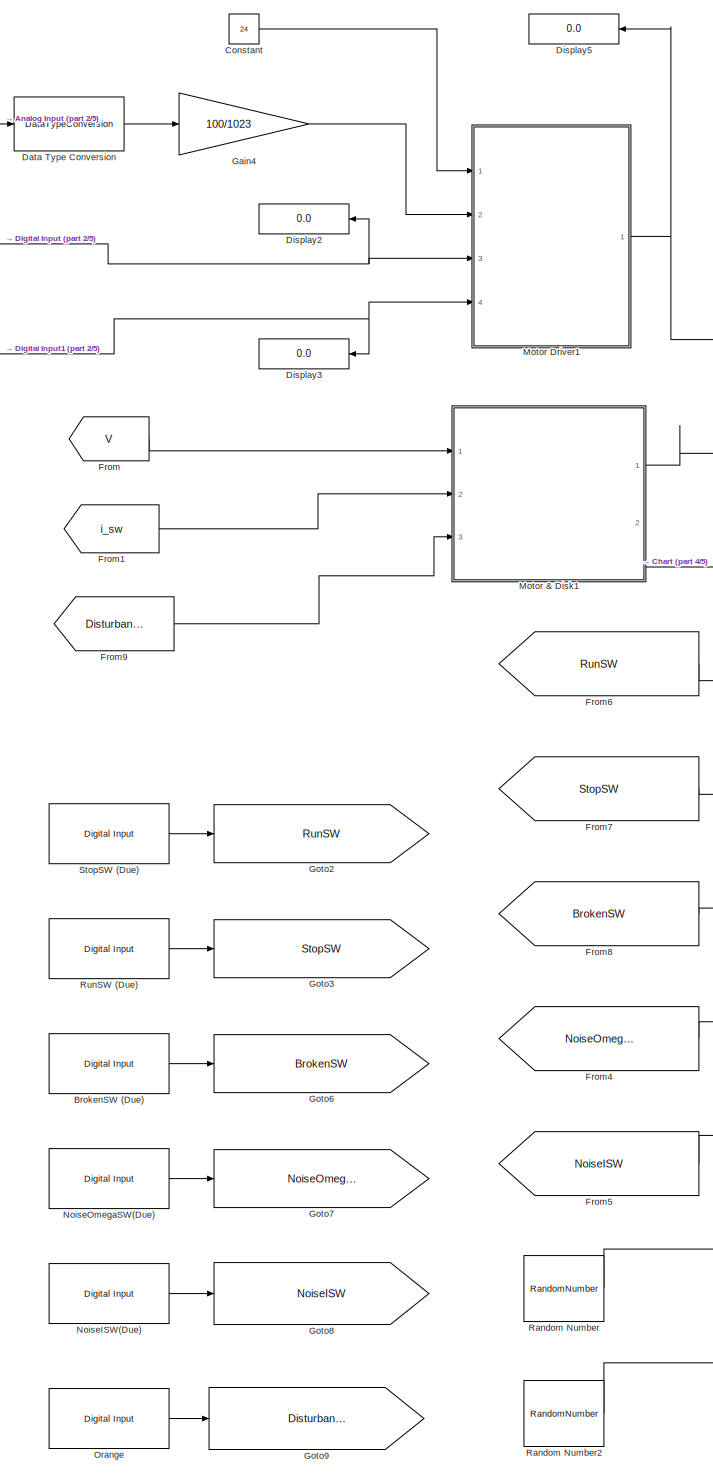
[diagram: root canvas - part 1/5, left side, full height]
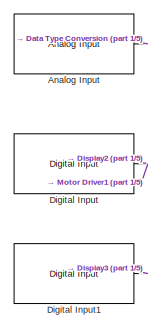
[diagram: root canvas - part 2/5, top left region]
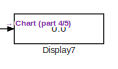
[diagram: root canvas - part 3/5, top center region]
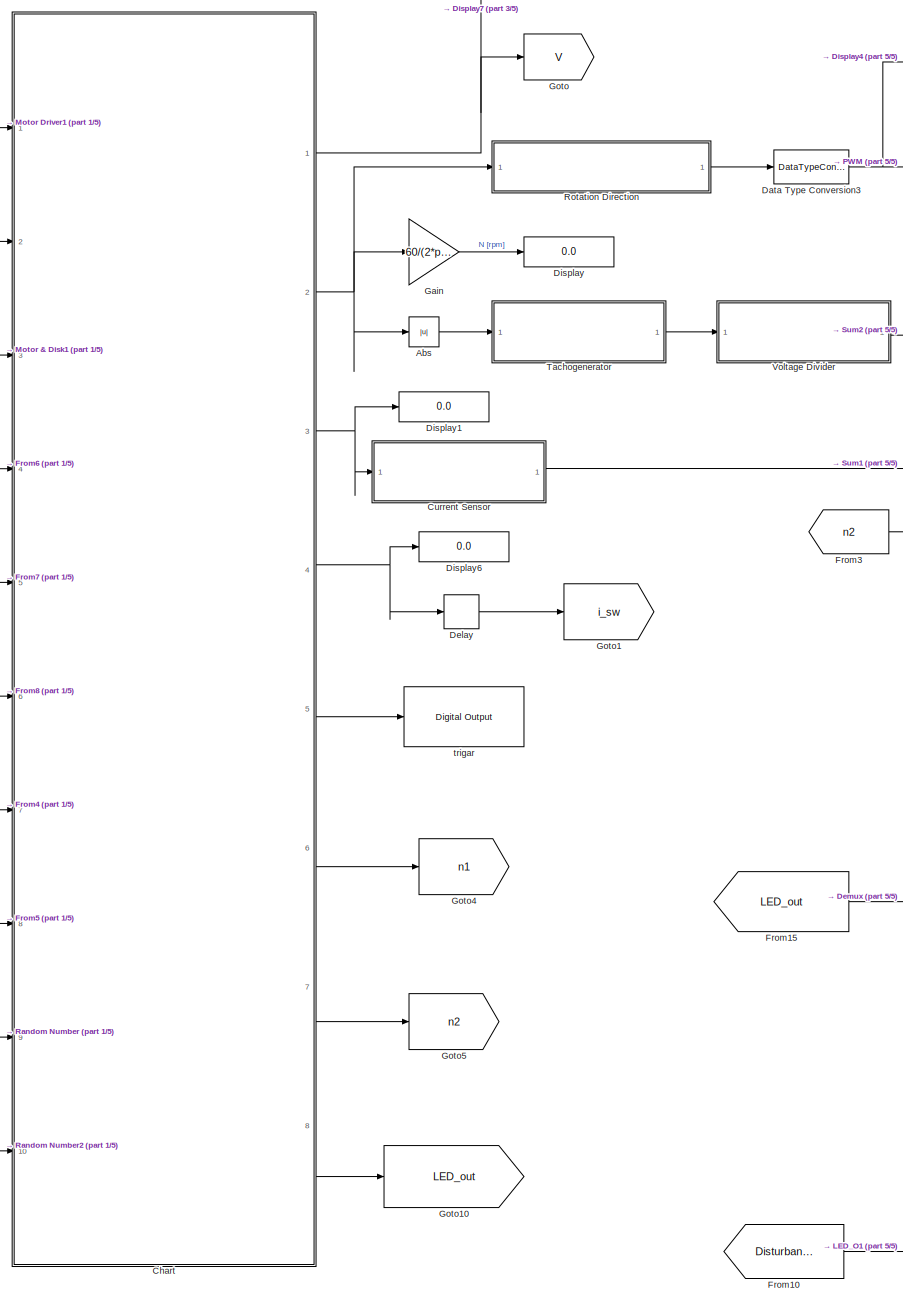
[diagram: root canvas - part 4/5, center side, full height]
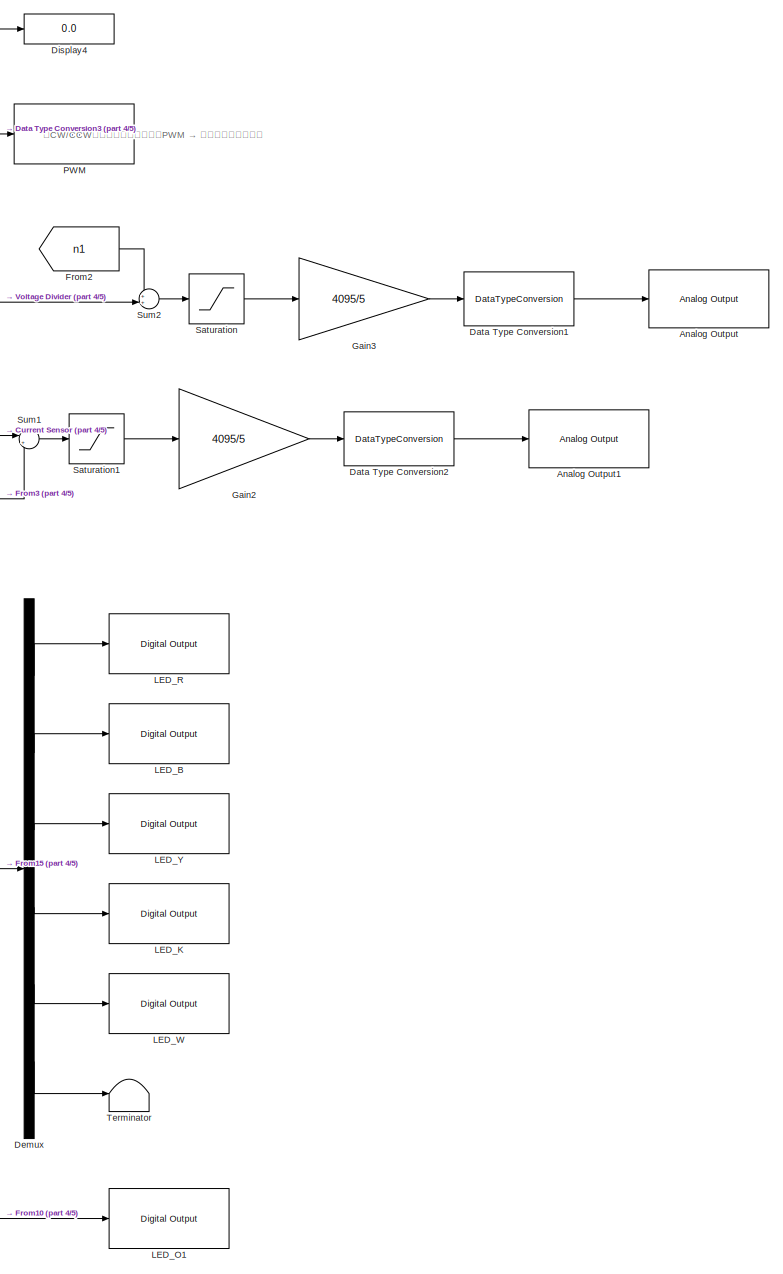
[diagram: root canvas - part 5/5, right side, full height]
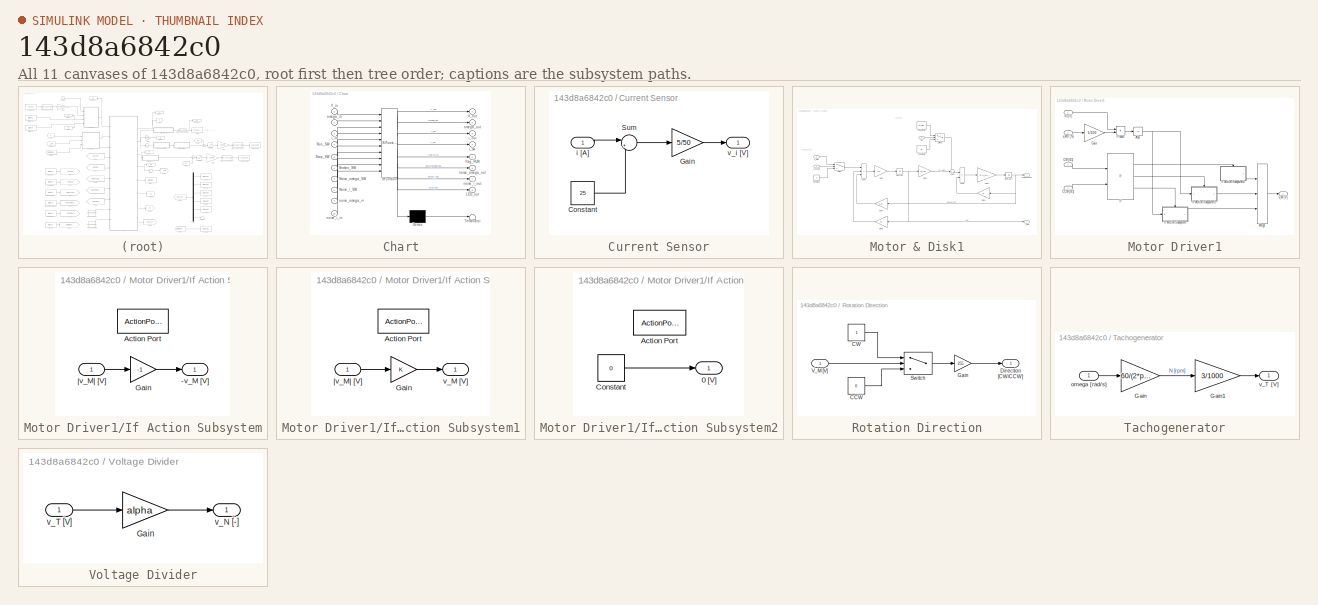
[diagram: thumbnail index - all 11 canvases of the model, root first then tree order]
MODEL slx_143d8a6842c0
KIND model
CONFIG AbsTol = auto
CONFIG EnableMultiTasking = on
CONFIG FixedStep = 1e-2
CONFIG MaxStep = auto
CONFIG MinStep = auto
CONFIG RelTol = 1e-3
CONFIG SampleTimeConstraint = Unconstrained
CONFIG SolverName = ode1
CONFIG StartTime = 0.0
CONFIG StopTime = inf
BLOCK [Abs] Abs
  SaturateOnIntegerOverflow = off
BLOCK [Reference] Analog Input  REF=arduinolib/Analog Input
  Ports = [0, 1]
  SourceBlock = arduinolib/Analog Input
  SourceProductBaseCode = ARDUINO
  SourceType = Arduino Analog Input
BLOCK [Reference] Analog Output  REF=arduinolib/Analog Output
  Ports = [1]
  SourceBlock = arduinolib/Analog Output
  SourceProductBaseCode = ARDUINO
  SourceType = Analog Output
BLOCK [Reference] Analog Output1  REF=arduinolib/Analog Output
  Ports = [1]
  SourceBlock = arduinolib/Analog Output
  SourceProductBaseCode = ARDUINO
  SourceType = Analog Output
BLOCK [Reference] BrokenSW (Due)  REF=arduinolib/Digital Input
  Ports = [0, 1]
  SourceBlock = arduinolib/Digital Input
  SourceProductBaseCode = ARDUINO
  SourceType = Arduino Digital Input
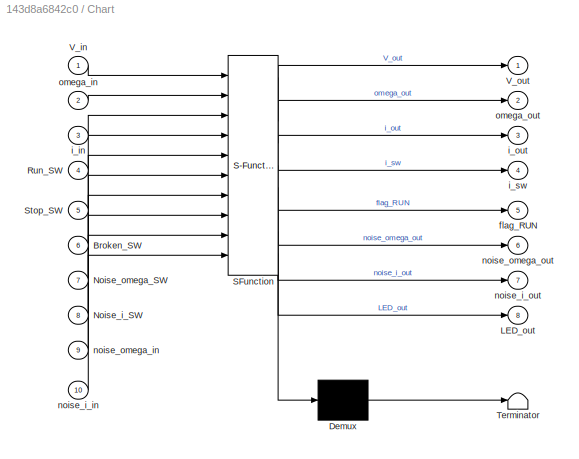
BLOCK [SubSystem] Chart
  ErrorFcn = Stateflow.Translate.translate
  PermitHierarchicalResolution = ExplicitOnly
  Ports = [10, 8]
  RequestExecContextInheritance = off
  SFBlockType = Chart
  TreatAsAtomicUnit = on
BLOCK [Demux] Chart/ Demux 
  Outputs = 1
  Ports = [1, 1]
BLOCK [S-Function] Chart/ SFunction 
  EnableBusSupport = on
  FunctionName = sf_sfun
  PortCounts = [10 9]
  Ports = [10, 9]
  SFcnIsStateOwnerBlock = off
  SFunctionDeploymentMode = off
  Tag = Stateflow S-Function 3
BLOCK [Terminator] Chart/ Terminator 
BLOCK [Inport] Chart/Broken_SW
  Port = 6
BLOCK [Outport] Chart/LED_out
  Port = 8
BLOCK [Inport] Chart/Noise_i_SW
  Port = 8
BLOCK [Inport] Chart/Noise_omega_SW
  Port = 7
BLOCK [Inport] Chart/Run_SW
  Port = 4
BLOCK [Inport] Chart/Stop_SW
  Port = 5
BLOCK [Inport] Chart/V_in
BLOCK [Outport] Chart/V_out
BLOCK [Outport] Chart/flag_RUN
  Port = 5
BLOCK [Inport] Chart/i_in
  Port = 3
BLOCK [Outport] Chart/i_out
  Port = 3
BLOCK [Outport] Chart/i_sw
  Port = 4
BLOCK [Inport] Chart/noise_i_in
  Port = 10
BLOCK [Outport] Chart/noise_i_out
  Port = 7
BLOCK [Inport] Chart/noise_omega_in
  Port = 9
BLOCK [Outport] Chart/noise_omega_out
  Port = 6
BLOCK [Inport] Chart/omega_in
  Port = 2
BLOCK [Outport] Chart/omega_out
  Port = 2
BLOCK [Constant] Constant
  Value = 24
BLOCK [SubSystem] Current Sensor
  Ports = [1, 1]
  RequestExecContextInheritance = off
BLOCK [Constant] Current Sensor/Constant
  Value = 25
BLOCK [Gain] Current Sensor/Gain
  Gain = 5/50
BLOCK [Sum] Current Sensor/Sum
  Inputs = |++
  Ports = [2, 1]
BLOCK [Inport] Current Sensor/i [A]
BLOCK [Outport] Current Sensor/v_i [V]
BLOCK [DataTypeConversion] Data Type Conversion
  OutDataTypeStr = double
  RndMeth = Floor
  SaturateOnIntegerOverflow = off
BLOCK [DataTypeConversion] Data Type Conversion1
  OutDataTypeStr = uint16
  RndMeth = Floor
  SaturateOnIntegerOverflow = off
BLOCK [DataTypeConversion] Data Type Conversion2
  OutDataTypeStr = uint16
  RndMeth = Floor
  SaturateOnIntegerOverflow = off
BLOCK [DataTypeConversion] Data Type Conversion3
  OutDataTypeStr = uint8
  RndMeth = Floor
  SaturateOnIntegerOverflow = off
BLOCK [Delay] Delay
  DelayLength = 1
  InitialCondition = 0
  InputPortMap = u0
  Ports = [1, 1]
BLOCK [Demux] Demux
  Outputs = 6
  Ports = [1, 6]
BLOCK [Reference] Digital Input  REF=arduinolib/Digital Input
  Ports = [0, 1]
  SourceBlock = arduinolib/Digital Input
  SourceProductBaseCode = ARDUINO
  SourceType = Arduino Digital Input
BLOCK [Reference] Digital Input1  REF=arduinolib/Digital Input
  Ports = [0, 1]
  SourceBlock = arduinolib/Digital Input
  SourceProductBaseCode = ARDUINO
  SourceType = Arduino Digital Input
BLOCK [Display] Display
  Decimation = 1
  Ports = [1]
BLOCK [Display] Display1
  Decimation = 1
  Ports = [1]
BLOCK [Display] Display2
  Decimation = 1
  Ports = [1]
BLOCK [Display] Display3
  Decimation = 1
  Ports = [1]
BLOCK [Display] Display4
  Decimation = 1
  Ports = [1]
BLOCK [Display] Display5
  Decimation = 1
  Ports = [1]
BLOCK [Display] Display6
  Decimation = 1
  Ports = [1]
BLOCK [Display] Display7
  Decimation = 1
  Ports = [1]
BLOCK [From] From
  GotoTag = V
BLOCK [From] From1
  GotoTag = i_sw
BLOCK [From] From10
  GotoTag = Disturbance
BLOCK [From] From15
  GotoTag = LED_out
BLOCK [From] From2
  GotoTag = n1
BLOCK [From] From3
  GotoTag = n2
BLOCK [From] From4
  GotoTag = NoiseOmegaSW
BLOCK [From] From5
  GotoTag = NoiseISW
BLOCK [From] From6
  GotoTag = RunSW
BLOCK [From] From7
  GotoTag = StopSW
BLOCK [From] From8
  GotoTag = BrokenSW
BLOCK [From] From9
  GotoTag = Disturbance
BLOCK [Gain] Gain
  Gain = 60/(2*pi)
BLOCK [Gain] Gain2
  Gain = 4095/5
BLOCK [Gain] Gain3
  Gain = 4095/5
  NameLocation = top
BLOCK [Gain] Gain4
  Gain = 100/1023
BLOCK [Goto] Goto
  GotoTag = V
BLOCK [Goto] Goto1
  GotoTag = i_sw
BLOCK [Goto] Goto10
  GotoTag = LED_out
BLOCK [Goto] Goto2
  GotoTag = RunSW
BLOCK [Goto] Goto3
  GotoTag = StopSW
BLOCK [Goto] Goto4
  GotoTag = n1
BLOCK [Goto] Goto5
  GotoTag = n2
BLOCK [Goto] Goto6
  GotoTag = BrokenSW
BLOCK [Goto] Goto7
  GotoTag = NoiseOmegaSW
BLOCK [Goto] Goto8
  GotoTag = NoiseISW
BLOCK [Goto] Goto9
  GotoTag = Disturbance
BLOCK [Reference] LED_B  REF=arduinolib/Digital Output
  Ports = [1]
  SourceBlock = arduinolib/Digital Output
  SourceProductBaseCode = ARDUINO
  SourceType = Arduino Digital Output
BLOCK [Reference] LED_K  REF=arduinolib/Digital Output
  Ports = [1]
  SourceBlock = arduinolib/Digital Output
  SourceProductBaseCode = ARDUINO
  SourceType = Arduino Digital Output
BLOCK [Reference] LED_O1  REF=arduinolib/Digital Output
  Ports = [1]
  SourceBlock = arduinolib/Digital Output
  SourceProductBaseCode = ARDUINO
  SourceType = Arduino Digital Output
BLOCK [Reference] LED_R  REF=arduinolib/Digital Output
  Ports = [1]
  SourceBlock = arduinolib/Digital Output
  SourceProductBaseCode = ARDUINO
  SourceType = Arduino Digital Output
BLOCK [Reference] LED_W  REF=arduinolib/Digital Output
  Ports = [1]
  SourceBlock = arduinolib/Digital Output
  SourceProductBaseCode = ARDUINO
  SourceType = Arduino Digital Output
BLOCK [Reference] LED_Y  REF=arduinolib/Digital Output
  Ports = [1]
  SourceBlock = arduinolib/Digital Output
  SourceProductBaseCode = ARDUINO
  SourceType = Arduino Digital Output
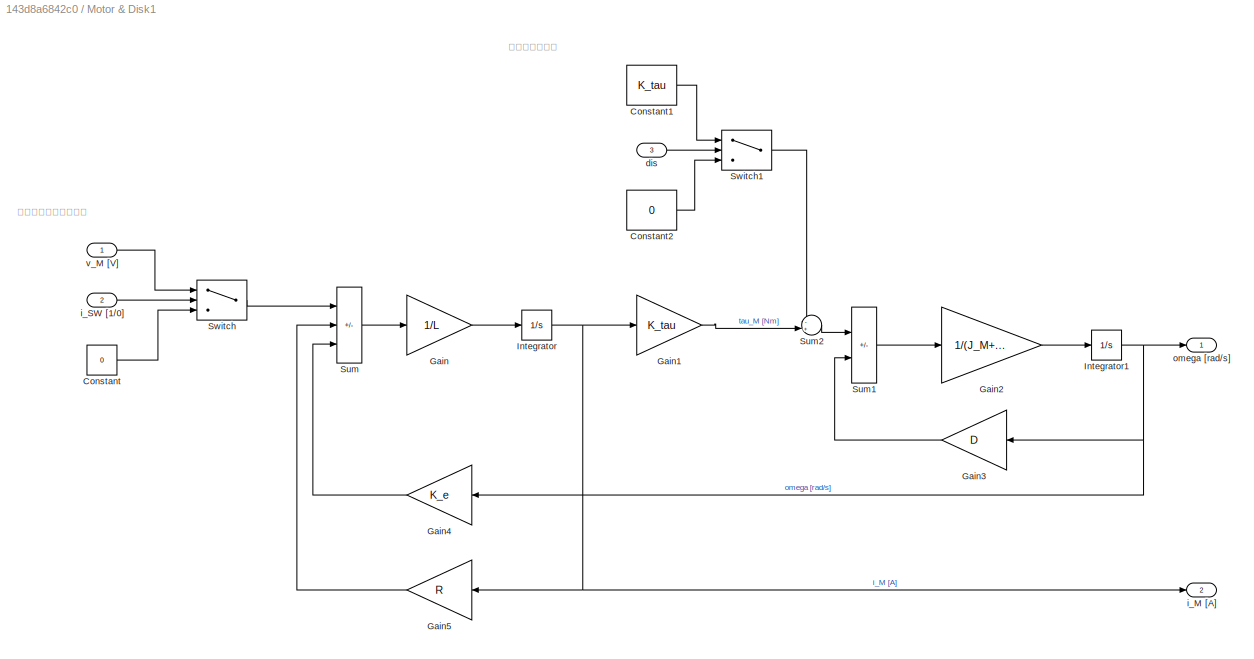
BLOCK [SubSystem] Motor & Disk1
  Ports = [3, 2]
  RequestExecContextInheritance = off
BLOCK [Constant] Motor & Disk1/Constant
  Value = 0
BLOCK [Constant] Motor & Disk1/Constant1
  Value = K_tau
BLOCK [Constant] Motor & Disk1/Constant2
  Value = 0
BLOCK [Gain] Motor & Disk1/Gain
  Gain = 1/L
BLOCK [Gain] Motor & Disk1/Gain1
  Gain = K_tau
BLOCK [Gain] Motor & Disk1/Gain2
  Gain = 1/(J_M+J_I)
BLOCK [Gain] Motor & Disk1/Gain3
  Gain = D
BLOCK [Gain] Motor & Disk1/Gain4
  Gain = K_e
BLOCK [Gain] Motor & Disk1/Gain5
  Gain = R
BLOCK [Integrator] Motor & Disk1/Integrator
  Ports = [1, 1]
BLOCK [Integrator] Motor & Disk1/Integrator1
  Ports = [1, 1]
BLOCK [Sum] Motor & Disk1/Sum
  IconShape = rectangular
  Inputs = +--
  Ports = [3, 1]
BLOCK [Sum] Motor & Disk1/Sum1
  IconShape = rectangular
  Inputs = +-
  Ports = [2, 1]
BLOCK [Sum] Motor & Disk1/Sum2
  Inputs = -+|
  Ports = [2, 1]
BLOCK [Switch] Motor & Disk1/Switch
  Criteria = u2 > Threshold
  InputSameDT = off
  SaturateOnIntegerOverflow = off
  Threshold = 0.5
BLOCK [Switch] Motor & Disk1/Switch1
  Criteria = u2 > Threshold
  InputSameDT = off
  SaturateOnIntegerOverflow = off
  Threshold = 0.5
BLOCK [Inport] Motor & Disk1/dis
  Port = 3
BLOCK [Outport] Motor & Disk1/i_M [A]
  Port = 2
BLOCK [Inport] Motor & Disk1/i_SW [1//0]
  Port = 2
BLOCK [Outport] Motor & Disk1/omega [rad//s]
BLOCK [Inport] Motor & Disk1/v_M [V]
BLOCK [SubSystem] Motor Driver1
  Ports = [4, 1]
  RequestExecContextInheritance = off
BLOCK [Abs] Motor Driver1/Abs
  SaturateOnIntegerOverflow = off
BLOCK [Inport] Motor Driver1/CCW [0//1]
  Port = 4
BLOCK [Inport] Motor Driver1/CW [0//1]
  Port = 3
BLOCK [Gain] Motor Driver1/Gain
  Gain = 1/100
BLOCK [If] Motor Driver1/If
  ElseIfExpressions = u1 == 1
  IfExpression = u1 == u2
  NumInputs = 2
  Ports = [2, 3]
BLOCK [SubSystem] Motor Driver1/If Action Subsystem
  Ports = [1, 1, 0, 0, 0, 0, 0, 1]
  RequestExecContextInheritance = off
  TreatAsAtomicUnit = on
BLOCK [Outport] Motor Driver1/If Action Subsystem/-v_M [V]
BLOCK [ActionPort] Motor Driver1/If Action Subsystem/Action Port
  ActionPortLabel = else
BLOCK [Gain] Motor Driver1/If Action Subsystem/Gain
  Gain = -1
BLOCK [Inport] Motor Driver1/If Action Subsystem/|v_M| [V]
BLOCK [SubSystem] Motor Driver1/If Action Subsystem1
  Ports = [1, 1, 0, 0, 0, 0, 0, 1]
  RequestExecContextInheritance = off
  TreatAsAtomicUnit = on
BLOCK [ActionPort] Motor Driver1/If Action Subsystem1/Action Port
  ActionPortLabel = elseif(u1 == 1)
BLOCK [Gain] Motor Driver1/If Action Subsystem1/Gain
BLOCK [Outport] Motor Driver1/If Action Subsystem1/v_M [V]
BLOCK [Inport] Motor Driver1/If Action Subsystem1/|v_M| [V]
BLOCK [SubSystem] Motor Driver1/If Action Subsystem2
  Ports = [0, 1, 0, 0, 0, 0, 0, 1]
  RequestExecContextInheritance = off
  TreatAsAtomicUnit = on
BLOCK [Outport] Motor Driver1/If Action Subsystem2/0 [V]
BLOCK [ActionPort] Motor Driver1/If Action Subsystem2/Action Port
  ActionPortLabel = if(u1 == u2)
BLOCK [Constant] Motor Driver1/If Action Subsystem2/Constant
  Value = 0
BLOCK [Merge] Motor Driver1/Merge
  InitialOutput = [0]
  Inputs = 3
  Ports = [3, 1]
BLOCK [Product] Motor Driver1/Product
  Ports = [2, 1]
BLOCK [Inport] Motor Driver1/Vs [V]
BLOCK [Inport] Motor Driver1/u_MD [%]
  Port = 2
BLOCK [Outport] Motor Driver1/v_M [V]
BLOCK [Reference] NoiseISW(Due)  REF=arduinolib/Digital Input
  Ports = [0, 1]
  SourceBlock = arduinolib/Digital Input
  SourceProductBaseCode = ARDUINO
  SourceType = Arduino Digital Input
BLOCK [Reference] NoiseOmegaSW(Due)  REF=arduinolib/Digital Input
  Ports = [0, 1]
  SourceBlock = arduinolib/Digital Input
  SourceProductBaseCode = ARDUINO
  SourceType = Arduino Digital Input
BLOCK [Reference] Orange  REF=arduinolib/Digital Input
  Ports = [0, 1]
  SourceBlock = arduinolib/Digital Input
  SourceProductBaseCode = ARDUINO
  SourceType = Arduino Digital Input
BLOCK [Reference] PWM  REF=arduinolib/PWM
  Ports = [1]
  SourceBlock = arduinolib/PWM
  SourceProductBaseCode = ARDUINO
  SourceType = Arduino PWM
BLOCK [RandomNumber] Random Number
  SampleTime = 0
  Variance = 1.0^2
BLOCK [RandomNumber] Random Number2
  SampleTime = 0
  Variance = 1.0^2
BLOCK [SubSystem] Rotation Direction
  Ports = [1, 1]
  RequestExecContextInheritance = off
BLOCK [Constant] Rotation Direction/CCW
  Value = 0
BLOCK [Constant] Rotation Direction/CW
BLOCK [Outport] Rotation Direction/Direction [CW//CCW]
BLOCK [Gain] Rotation Direction/Gain
  Gain = 255
BLOCK [Switch] Rotation Direction/Switch
  Criteria = u2 > Threshold
  InputSameDT = off
  SaturateOnIntegerOverflow = off
BLOCK [Inport] Rotation Direction/V_M [V]
BLOCK [Reference] RunSW (Due)  REF=arduinolib/Digital Input
  Ports = [0, 1]
  SourceBlock = arduinolib/Digital Input
  SourceProductBaseCode = ARDUINO
  SourceType = Arduino Digital Input
BLOCK [Saturate] Saturation
  LowerLimit = 0
  UpperLimit = 5
BLOCK [Saturate] Saturation1
  LowerLimit = 0
  UpperLimit = 5
BLOCK [Reference] StopSW (Due)  REF=arduinolib/Digital Input
  Ports = [0, 1]
  SourceBlock = arduinolib/Digital Input
  SourceProductBaseCode = ARDUINO
  SourceType = Arduino Digital Input
BLOCK [Sum] Sum1
  Inputs = |++
  Ports = [2, 1]
BLOCK [Sum] Sum2
  Inputs = ++|
  Ports = [2, 1]
BLOCK [SubSystem] Tachogenerator
  Ports = [1, 1]
  RequestExecContextInheritance = off
BLOCK [Gain] Tachogenerator/Gain
  Gain = 60/(2*pi)
BLOCK [Gain] Tachogenerator/Gain1
  Gain = 3/1000
BLOCK [Inport] Tachogenerator/omega [rad//s]
BLOCK [Outport] Tachogenerator/v_T [V]
BLOCK [Terminator] Terminator
BLOCK [SubSystem] Voltage Divider
  Ports = [1, 1]
  RequestExecContextInheritance = off
BLOCK [Gain] Voltage Divider/Gain
  Gain = alpha
BLOCK [Outport] Voltage Divider/v_N [-]
BLOCK [Inport] Voltage Divider/v_T [V]
BLOCK [Reference] trigar  REF=arduinolib/Digital Output
  Ports = [1]
  SourceBlock = arduinolib/Digital Output
  SourceProductBaseCode = ARDUINO
  SourceType = Arduino Digital Output
ANNOTATION (root): ※CW/CCW（ディジタル）信号をPWM → アナログ出力で代用
ANNOTATION Motor & Disk1: ステップ状外乱
ANNOTATION Motor & Disk1: 電源スイッチ連動模擬
LINE Abs:1 -> Tachogenerator:1
LINE Analog Input:1 -> Data Type Conversion:1
LINE BrokenSW (Due):1 -> Goto6:1
NET Chart:1 -> Display7:1, Goto:1
NET Chart:2 -> Abs:1, Gain:1, Rotation Direction:1
NET Chart:3 -> Current Sensor:1, Display1:1
NET Chart:4 -> Delay:1, Display6:1
LINE Chart:5 -> trigar:1
LINE Chart:6 -> Goto4:1
LINE Chart:7 -> Goto5:1
LINE Chart:8 -> Goto10:1
LINE Constant:1 -> Motor Driver1:1
LINE Current Sensor/Constant:1 -> Current Sensor/Sum:2
LINE Current Sensor/Gain:1 -> Current Sensor/v_i [V]:1
LINE Current Sensor/Sum:1 -> Current Sensor/Gain:1
LINE Current Sensor/i [A]:1 -> Current Sensor/Sum:1
LINE Current Sensor:1 -> Sum1:1
LINE Data Type Conversion1:1 -> Analog Output:1
LINE Data Type Conversion2:1 -> Analog Output1:1
NET Data Type Conversion3:1 -> Display4:1, PWM:1
LINE Data Type Conversion:1 -> Gain4:1
LINE Delay:1 -> Goto1:1
LINE Demux:1 -> LED_R:1
LINE Demux:2 -> LED_B:1
LINE Demux:3 -> LED_Y:1
LINE Demux:4 -> LED_K:1
LINE Demux:5 -> LED_W:1
LINE Demux:6 -> Terminator:1
NET Digital Input1:1 -> Display3:1, Motor Driver1:4
NET Digital Input:1 -> Display2:1, Motor Driver1:3
LINE From10:1 -> LED_O1:1
LINE From15:1 -> Demux:1
LINE From1:1 -> Motor & Disk1:2
LINE From2:1 -> Sum2:1
LINE From3:1 -> Sum1:2
LINE From4:1 -> Chart:7
LINE From5:1 -> Chart:8
LINE From6:1 -> Chart:4
LINE From7:1 -> Chart:5
LINE From8:1 -> Chart:6
LINE From9:1 -> Motor & Disk1:3
LINE From:1 -> Motor & Disk1:1
LINE Gain2:1 -> Data Type Conversion2:1
LINE Gain3:1 -> Data Type Conversion1:1
LINE Gain4:1 -> Motor Driver1:2
LINE Gain:1 -> Display:1
LINE Motor & Disk1/Constant1:1 -> Motor & Disk1/Switch1:1
LINE Motor & Disk1/Constant2:1 -> Motor & Disk1/Switch1:3
LINE Motor & Disk1/Constant:1 -> Motor & Disk1/Switch:3
LINE Motor & Disk1/Gain1:1 -> Motor & Disk1/Sum2:2
LINE Motor & Disk1/Gain2:1 -> Motor & Disk1/Integrator1:1
LINE Motor & Disk1/Gain3:1 -> Motor & Disk1/Sum1:2
LINE Motor & Disk1/Gain4:1 -> Motor & Disk1/Sum:3
LINE Motor & Disk1/Gain5:1 -> Motor & Disk1/Sum:2
LINE Motor & Disk1/Gain:1 -> Motor & Disk1/Integrator:1
NET Motor & Disk1/Integrator1:1 -> Motor & Disk1/Gain3:1, Motor & Disk1/Gain4:1, Motor & Disk1/omega [rad//s]:1
NET Motor & Disk1/Integrator:1 -> Motor & Disk1/Gain1:1, Motor & Disk1/Gain5:1, Motor & Disk1/i_M [A]:1
LINE Motor & Disk1/Sum1:1 -> Motor & Disk1/Gain2:1
LINE Motor & Disk1/Sum2:1 -> Motor & Disk1/Sum1:1
LINE Motor & Disk1/Sum:1 -> Motor & Disk1/Gain:1
LINE Motor & Disk1/Switch1:1 -> Motor & Disk1/Sum2:1
LINE Motor & Disk1/Switch:1 -> Motor & Disk1/Sum:1
LINE Motor & Disk1/dis:1 -> Motor & Disk1/Switch1:2
LINE Motor & Disk1/i_SW [1//0]:1 -> Motor & Disk1/Switch:2
LINE Motor & Disk1/v_M [V]:1 -> Motor & Disk1/Switch:1
LINE Motor & Disk1:1 -> Chart:2
LINE Motor & Disk1:2 -> Chart:3
NET Motor Driver1/Abs:1 -> Motor Driver1/If Action Subsystem1:1, Motor Driver1/If Action Subsystem:1
LINE Motor Driver1/CCW [0//1]:1 -> Motor Driver1/If:2
LINE Motor Driver1/CW [0//1]:1 -> Motor Driver1/If:1
LINE Motor Driver1/Gain:1 -> Motor Driver1/Product:2
LINE Motor Driver1/If Action Subsystem/Gain:1 -> Motor Driver1/If Action Subsystem/-v_M [V]:1
LINE Motor Driver1/If Action Subsystem/|v_M| [V]:1 -> Motor Driver1/If Action Subsystem/Gain:1
LINE Motor Driver1/If Action Subsystem1/Gain:1 -> Motor Driver1/If Action Subsystem1/v_M [V]:1
LINE Motor Driver1/If Action Subsystem1/|v_M| [V]:1 -> Motor Driver1/If Action Subsystem1/Gain:1
LINE Motor Driver1/If Action Subsystem1:1 -> Motor Driver1/Merge:2
LINE Motor Driver1/If Action Subsystem2/Constant:1 -> Motor Driver1/If Action Subsystem2/0 [V]:1
LINE Motor Driver1/If Action Subsystem2:1 -> Motor Driver1/Merge:1
LINE Motor Driver1/If Action Subsystem:1 -> Motor Driver1/Merge:3
LINE Motor Driver1/If:1 -> Motor Driver1/If Action Subsystem2:ifaction
LINE Motor Driver1/If:2 -> Motor Driver1/If Action Subsystem1:ifaction
LINE Motor Driver1/If:3 -> Motor Driver1/If Action Subsystem:ifaction
LINE Motor Driver1/Merge:1 -> Motor Driver1/v_M [V]:1
LINE Motor Driver1/Product:1 -> Motor Driver1/Abs:1
LINE Motor Driver1/Vs [V]:1 -> Motor Driver1/Product:1
LINE Motor Driver1/u_MD [%]:1 -> Motor Driver1/Gain:1
NET Motor Driver1:1 -> Chart:1, Display5:1
LINE NoiseISW(Due):1 -> Goto8:1
LINE NoiseOmegaSW(Due):1 -> Goto7:1
LINE Orange:1 -> Goto9:1
LINE Random Number2:1 -> Chart:10
LINE Random Number:1 -> Chart:9
LINE Rotation Direction/CCW:1 -> Rotation Direction/Switch:3
LINE Rotation Direction/CW:1 -> Rotation Direction/Switch:1
LINE Rotation Direction/Gain:1 -> Rotation Direction/Direction [CW//CCW]:1
LINE Rotation Direction/Switch:1 -> Rotation Direction/Gain:1
LINE Rotation Direction/V_M [V]:1 -> Rotation Direction/Switch:2
LINE Rotation Direction:1 -> Data Type Conversion3:1
LINE RunSW (Due):1 -> Goto3:1
LINE Saturation1:1 -> Gain2:1
LINE Saturation:1 -> Gain3:1
LINE StopSW (Due):1 -> Goto2:1
LINE Sum1:1 -> Saturation1:1
LINE Sum2:1 -> Saturation:1
LINE Tachogenerator/Gain1:1 -> Tachogenerator/v_T [V]:1
LINE Tachogenerator/Gain:1 -> Tachogenerator/Gain1:1
LINE Tachogenerator/omega [rad//s]:1 -> Tachogenerator/Gain:1
LINE Tachogenerator:1 -> Voltage Divider:1
LINE Voltage Divider/Gain:1 -> Voltage Divider/v_N [-]:1
LINE Voltage Divider/v_T [V]:1 -> Voltage Divider/Gain:1
LINE Voltage Divider:1 -> Sum2:2
note: NET lines group one-source signal fan-out (src -> all destinations, sorted); 1:1 wires keep LINE
CHART Chart states=5 transitions=11
  STATE_LABEL 'Stop\n\nentry:\nduring:\n\tV_out=0; i_out=i_in; omega_out=omega_in; i_sw=1;flag_RUN=1;\n\tnoise_omega_out=0;noise_i_out=0;\n\tLED_out=[1 0 0 0 0 0];\nexit:'
  STATE_LABEL 'Run\n\nentry:\nduring:\n\tV_out=V_in; i_out=i_in; omega_out=omega_in; i_sw=1;flag_RUN=0;\n\tnoise_omega_out=0;noise_i_out=0;\n\tLED_out=[0 1 0 0 0 0];\nexit:'
  STATE_LABEL 'Broken\n\nentry:\nduring:\n\tV_out= V_in/2; i_out=i_in; omega_out=omega_in; i_sw=1;flag_RUN=0;\n\tnoise_omega_out=0;noise_i_out=0;\n\tLED_out=[0 0 1 0 0 0];\nexit:'
  STATE_LABEL 'noise_omega\n\nentry:\nduring:\n\tV_out=V_in; i_out=i_in; omega_out=omega_in; i_sw=1;flag_RUN=0;\n\tnoise_omega_out=noise_omega_in;noise_i_out=0;\n\tLED_out=[0 0 0 1 0 0];\nexit:'
  STATE_LABEL 'noise_i\n\nentry:\nduring:\n\tV_out=V_in; i_out=i_in; omega_out=omega_in; i_sw=1;flag_RUN=0;\n\tnoise_omega_out=0;noise_i_out=noise_i_in;\n\tLED_out=[0 0 0 0 1 0];\nexit:'
CHART  states=0 transitions=0
